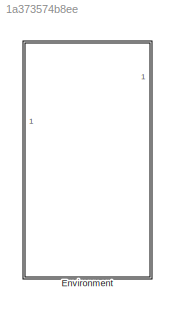
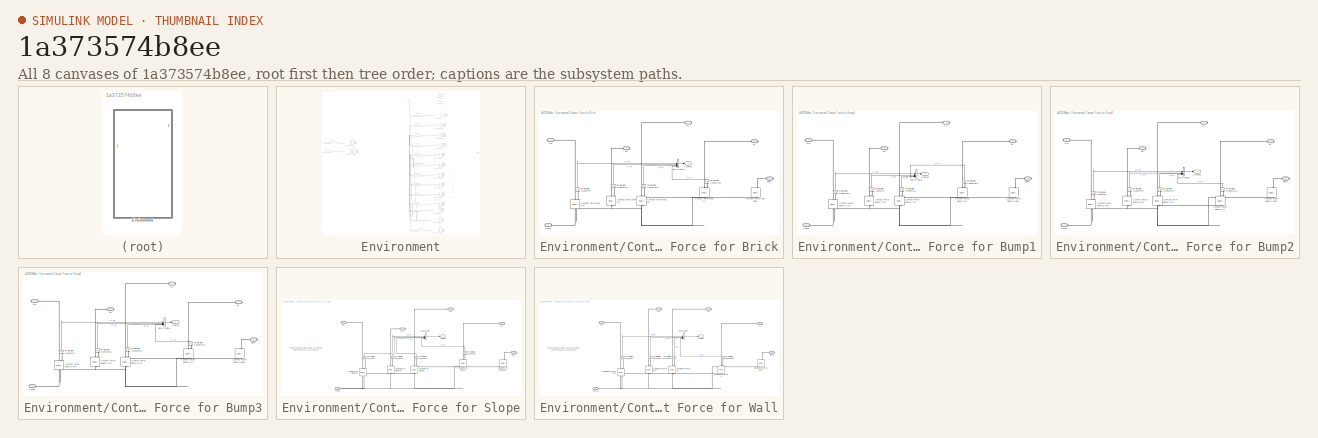
[diagram: thumbnail index - all 8 canvases of the model, root first then tree order]
MODEL slx_1a373574b8ee
KIND library
CONFIG AbsTol = auto
CONFIG EnableMultiTasking = off
CONFIG FixedStep = auto
CONFIG MaxStep = auto
CONFIG MinStep = auto
CONFIG RelTol = 1e-3
CONFIG SampleTimeConstraint = Unconstrained
CONFIG SolverName = VariableStepAuto
CONFIG StartTime = 0.0
CONFIG StopTime = 10.0
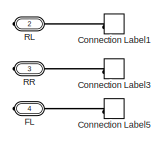
[diagram: Environment - part 1/8, top right region]
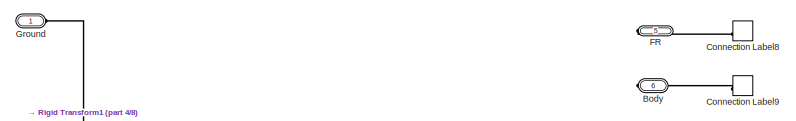
[diagram: Environment - part 2/8, top center region]
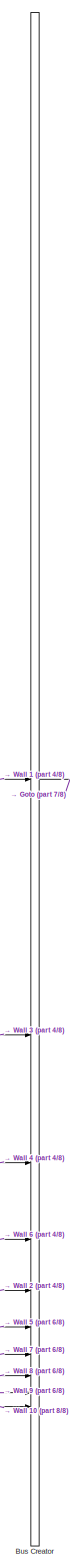
[diagram: Environment - part 3/8, middle right region]
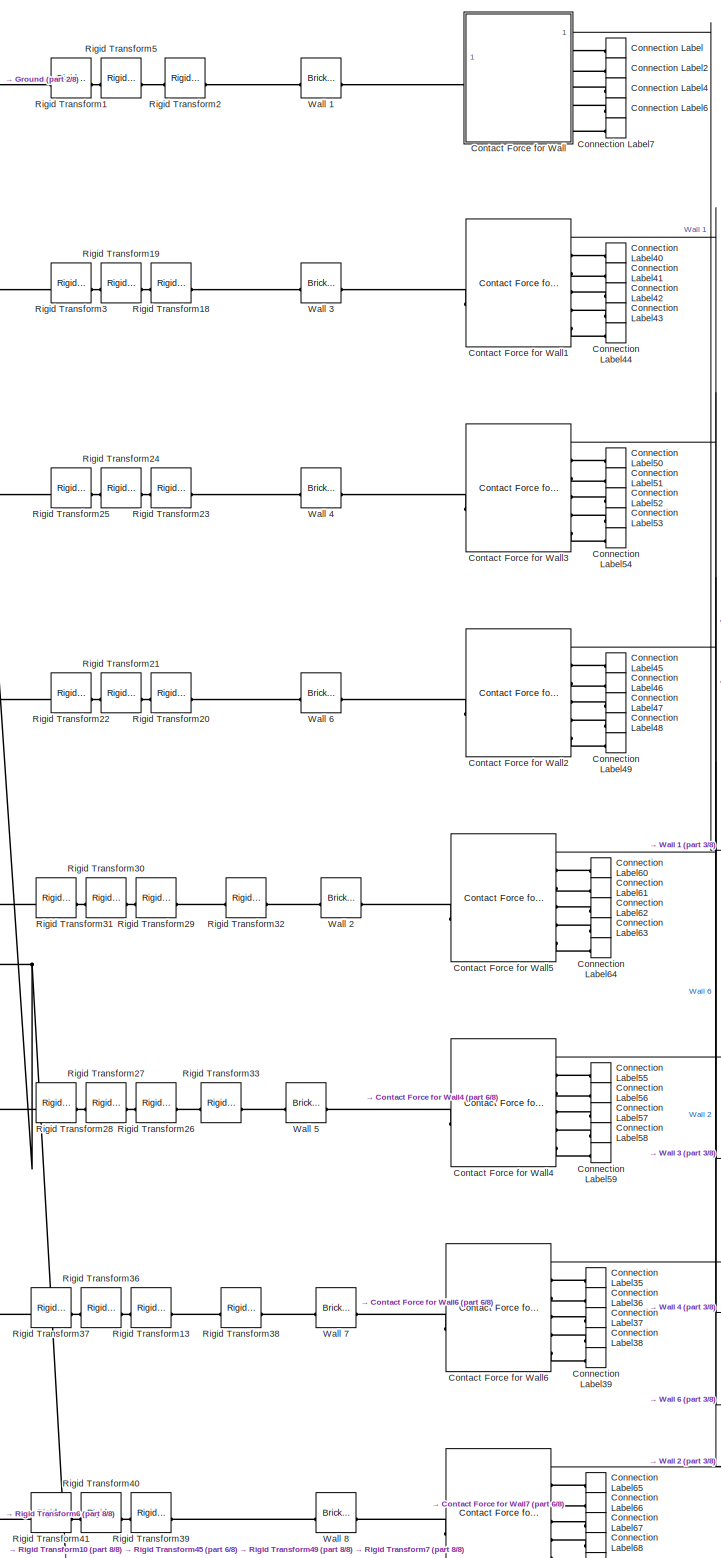
[diagram: Environment - part 4/8, middle right region]
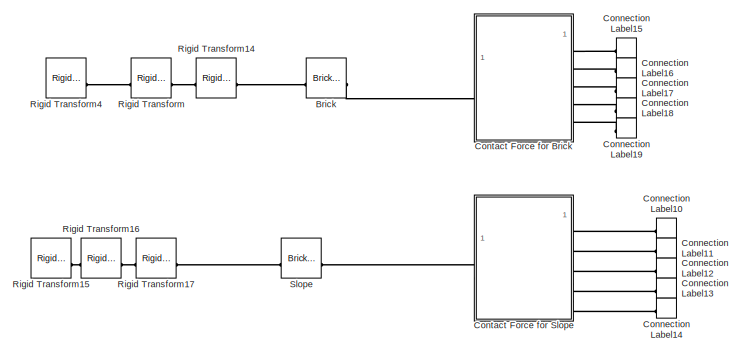
[diagram: Environment - part 5/8, middle left region]
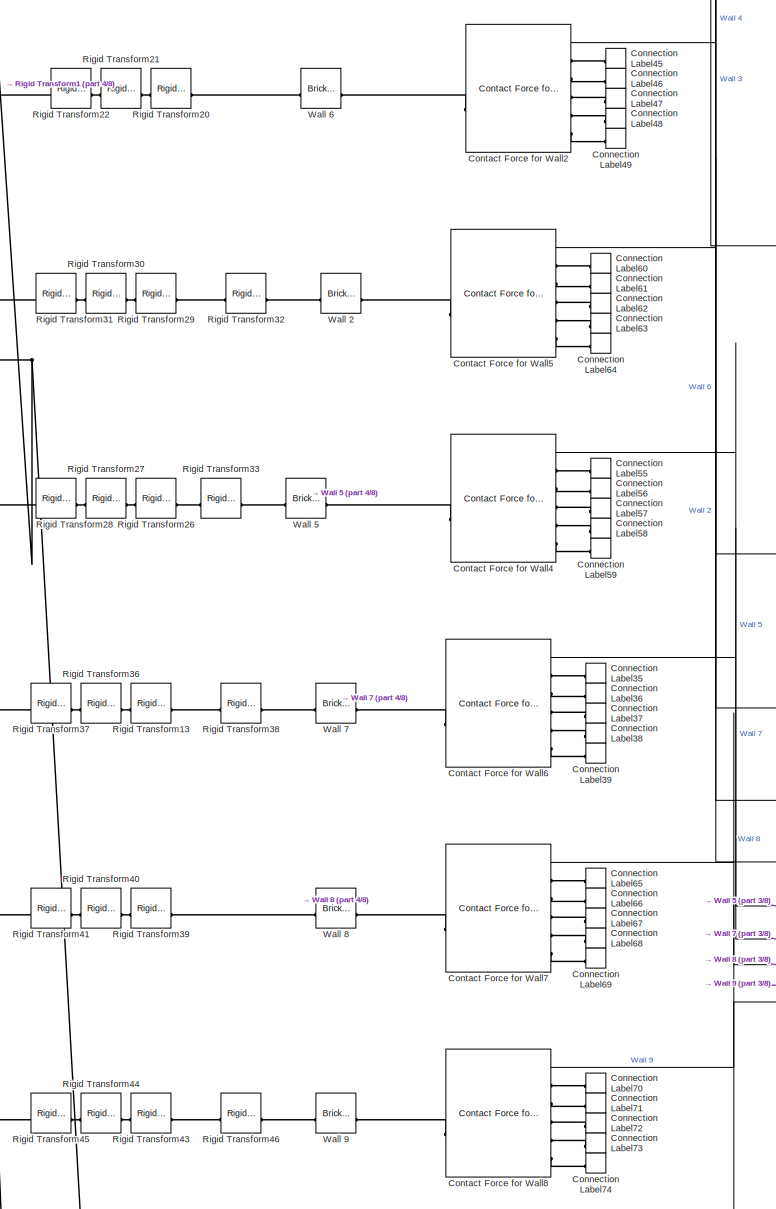
[diagram: Environment - part 6/8, middle right region]
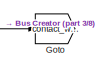
[diagram: Environment - part 7/8, middle right region]
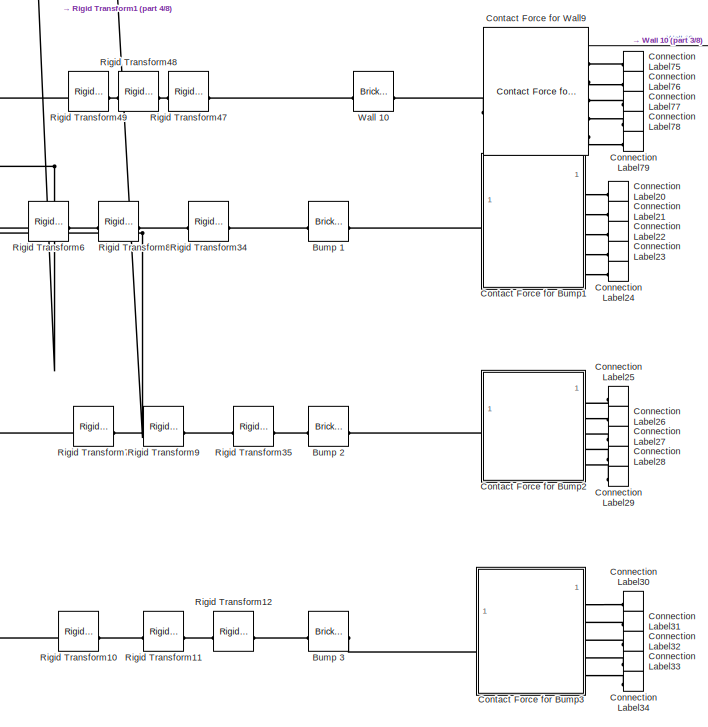
[diagram: Environment - part 8/8, bottom center region]
BLOCK [SubSystem] Environment
BLOCK [Reference] Environment/ Brick  REF=sm_lib/Body Elements/Brick Solid
  Commented = on
  NameLocation = top
  SourceBlock = sm_lib/Body Elements/Brick Solid
  SourceType = Brick Solid
BLOCK [PMIOPort] Environment/Body
  Port = 6
  Side = Right
BLOCK [Reference] Environment/Bump 1  REF=sm_lib/Body Elements/Brick Solid
  Commented = on
  NameLocation = top
  SourceBlock = sm_lib/Body Elements/Brick Solid
  SourceType = Brick Solid
BLOCK [Reference] Environment/Bump 2  REF=sm_lib/Body Elements/Brick Solid
  Commented = on
  NameLocation = top
  SourceBlock = sm_lib/Body Elements/Brick Solid
  SourceType = Brick Solid
BLOCK [Reference] Environment/Bump 3  REF=sm_lib/Body Elements/Brick Solid
  Commented = on
  NameLocation = top
  SourceBlock = sm_lib/Body Elements/Brick Solid
  SourceType = Brick Solid
BLOCK [BusCreator] Environment/Bus Creator
  DisplayOption = bar
  InheritFromInputs = on
  Inputs = 10
BLOCK [ConnectionLabel] Environment/Connection Label
  Label = Conn1
BLOCK [ConnectionLabel] Environment/Connection Label1
  Label = Conn1
BLOCK [ConnectionLabel] Environment/Connection Label10
  Label = Conn1
BLOCK [ConnectionLabel] Environment/Connection Label11
  Label = Conn2
BLOCK [ConnectionLabel] Environment/Connection Label12
  Label = Conn3
BLOCK [ConnectionLabel] Environment/Connection Label13
  Label = Conn4
BLOCK [ConnectionLabel] Environment/Connection Label14
  Label = Conn6
BLOCK [ConnectionLabel] Environment/Connection Label15
  Label = Conn1
BLOCK [ConnectionLabel] Environment/Connection Label16
  Label = Conn2
BLOCK [ConnectionLabel] Environment/Connection Label17
  Label = Conn3
BLOCK [ConnectionLabel] Environment/Connection Label18
  Label = Conn4
BLOCK [ConnectionLabel] Environment/Connection Label19
  Label = Conn6
BLOCK [ConnectionLabel] Environment/Connection Label2
  Label = Conn2
BLOCK [ConnectionLabel] Environment/Connection Label20
  Label = Conn1
BLOCK [ConnectionLabel] Environment/Connection Label21
  Label = Conn2
BLOCK [ConnectionLabel] Environment/Connection Label22
  Label = Conn3
BLOCK [ConnectionLabel] Environment/Connection Label23
  Label = Conn4
BLOCK [ConnectionLabel] Environment/Connection Label24
  Label = Conn6
BLOCK [ConnectionLabel] Environment/Connection Label25
  Label = Conn1
BLOCK [ConnectionLabel] Environment/Connection Label26
  Label = Conn2
BLOCK [ConnectionLabel] Environment/Connection Label27
  Label = Conn3
BLOCK [ConnectionLabel] Environment/Connection Label28
  Label = Conn4
BLOCK [ConnectionLabel] Environment/Connection Label29
  Label = Conn6
BLOCK [ConnectionLabel] Environment/Connection Label3
  Label = Conn2
BLOCK [ConnectionLabel] Environment/Connection Label30
  Label = Conn1
BLOCK [ConnectionLabel] Environment/Connection Label31
  Label = Conn2
BLOCK [ConnectionLabel] Environment/Connection Label32
  Label = Conn3
BLOCK [ConnectionLabel] Environment/Connection Label33
  Label = Conn4
BLOCK [ConnectionLabel] Environment/Connection Label34
  Label = Conn6
BLOCK [ConnectionLabel] Environment/Connection Label35
  Label = Conn1
BLOCK [ConnectionLabel] Environment/Connection Label36
  Label = Conn2
BLOCK [ConnectionLabel] Environment/Connection Label37
  Label = Conn3
BLOCK [ConnectionLabel] Environment/Connection Label38
  Label = Conn4
BLOCK [ConnectionLabel] Environment/Connection Label39
  Label = Conn6
BLOCK [ConnectionLabel] Environment/Connection Label4
  Label = Conn3
BLOCK [ConnectionLabel] Environment/Connection Label40
  Label = Conn1
BLOCK [ConnectionLabel] Environment/Connection Label41
  Label = Conn2
BLOCK [ConnectionLabel] Environment/Connection Label42
  Label = Conn3
BLOCK [ConnectionLabel] Environment/Connection Label43
  Label = Conn4
BLOCK [ConnectionLabel] Environment/Connection Label44
  Label = Conn6
BLOCK [ConnectionLabel] Environment/Connection Label45
  Label = Conn1
BLOCK [ConnectionLabel] Environment/Connection Label46
  Label = Conn2
BLOCK [ConnectionLabel] Environment/Connection Label47
  Label = Conn3
BLOCK [ConnectionLabel] Environment/Connection Label48
  Label = Conn4
BLOCK [ConnectionLabel] Environment/Connection Label49
  Label = Conn6
BLOCK [ConnectionLabel] Environment/Connection Label5
  Label = Conn3
BLOCK [ConnectionLabel] Environment/Connection Label50
  Label = Conn1
BLOCK [ConnectionLabel] Environment/Connection Label51
  Label = Conn2
BLOCK [ConnectionLabel] Environment/Connection Label52
  Label = Conn3
BLOCK [ConnectionLabel] Environment/Connection Label53
  Label = Conn4
BLOCK [ConnectionLabel] Environment/Connection Label54
  Label = Conn6
BLOCK [ConnectionLabel] Environment/Connection Label55
  Label = Conn1
BLOCK [ConnectionLabel] Environment/Connection Label56
  Label = Conn2
BLOCK [ConnectionLabel] Environment/Connection Label57
  Label = Conn3
BLOCK [ConnectionLabel] Environment/Connection Label58
  Label = Conn4
BLOCK [ConnectionLabel] Environment/Connection Label59
  Label = Conn6
BLOCK [ConnectionLabel] Environment/Connection Label6
  Label = Conn4
BLOCK [ConnectionLabel] Environment/Connection Label60
  Label = Conn1
BLOCK [ConnectionLabel] Environment/Connection Label61
  Label = Conn2
BLOCK [ConnectionLabel] Environment/Connection Label62
  Label = Conn3
BLOCK [ConnectionLabel] Environment/Connection Label63
  Label = Conn4
BLOCK [ConnectionLabel] Environment/Connection Label64
  Label = Conn6
BLOCK [ConnectionLabel] Environment/Connection Label65
  Label = Conn1
BLOCK [ConnectionLabel] Environment/Connection Label66
  Label = Conn2
BLOCK [ConnectionLabel] Environment/Connection Label67
  Label = Conn3
BLOCK [ConnectionLabel] Environment/Connection Label68
  Label = Conn4
BLOCK [ConnectionLabel] Environment/Connection Label69
  Label = Conn6
BLOCK [ConnectionLabel] Environment/Connection Label7
  Label = Conn6
BLOCK [ConnectionLabel] Environment/Connection Label70
  Label = Conn1
BLOCK [ConnectionLabel] Environment/Connection Label71
  Label = Conn2
BLOCK [ConnectionLabel] Environment/Connection Label72
  Label = Conn3
BLOCK [ConnectionLabel] Environment/Connection Label73
  Label = Conn4
BLOCK [ConnectionLabel] Environment/Connection Label74
  Label = Conn6
BLOCK [ConnectionLabel] Environment/Connection Label75
  Label = Conn1
BLOCK [ConnectionLabel] Environment/Connection Label76
  Label = Conn2
BLOCK [ConnectionLabel] Environment/Connection Label77
  Label = Conn3
BLOCK [ConnectionLabel] Environment/Connection Label78
  Label = Conn4
BLOCK [ConnectionLabel] Environment/Connection Label79
  Label = Conn6
BLOCK [ConnectionLabel] Environment/Connection Label8
  Label = Conn4
BLOCK [ConnectionLabel] Environment/Connection Label9
  Label = Conn6
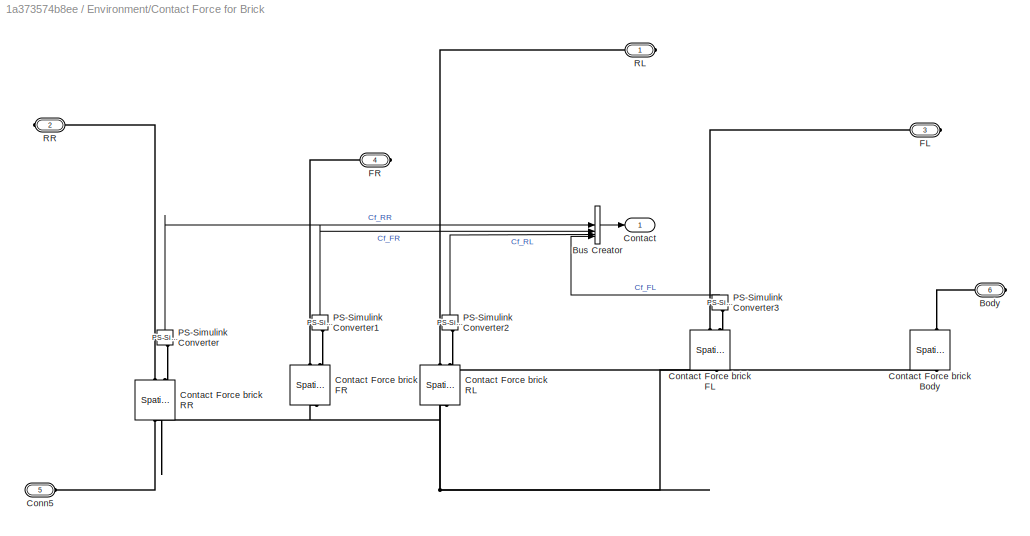
BLOCK [SubSystem] Environment/Contact Force for Brick
  Commented = on
BLOCK [PMIOPort] Environment/Contact Force for Brick/Body
  Port = 6
  Side = Right
BLOCK [BusCreator] Environment/Contact Force for Brick/Bus Creator
  DisplayOption = bar
  InheritFromInputs = on
  Inputs = 4
BLOCK [PMIOPort] Environment/Contact Force for Brick/Conn5
  Port = 5
  Side = Left
BLOCK [Outport] Environment/Contact Force for Brick/Contact
BLOCK [Reference] Environment/Contact Force for Brick/Contact Force brick Body  REF=sm_lib/Forces and
Torques/Spatial
Contact Force
  NameLocation = left
  SourceBlock = sm_lib/Forces and\nTorques/Spatial\nContact Force
  SourceType = Spatial\nContact Force
BLOCK [Reference] Environment/Contact Force for Brick/Contact Force brick FL  REF=sm_lib/Forces and
Torques/Spatial
Contact Force
  NameLocation = left
  SourceBlock = sm_lib/Forces and\nTorques/Spatial\nContact Force
  SourceType = Spatial\nContact Force
BLOCK [Reference] Environment/Contact Force for Brick/Contact Force brick FR  REF=sm_lib/Forces and
Torques/Spatial
Contact Force
  NameLocation = left
  SourceBlock = sm_lib/Forces and\nTorques/Spatial\nContact Force
  SourceType = Spatial\nContact Force
BLOCK [Reference] Environment/Contact Force for Brick/Contact Force brick RL  REF=sm_lib/Forces and
Torques/Spatial
Contact Force
  NameLocation = left
  SourceBlock = sm_lib/Forces and\nTorques/Spatial\nContact Force
  SourceType = Spatial\nContact Force
BLOCK [Reference] Environment/Contact Force for Brick/Contact Force brick RR  REF=sm_lib/Forces and
Torques/Spatial
Contact Force
  NameLocation = left
  SourceBlock = sm_lib/Forces and\nTorques/Spatial\nContact Force
  SourceType = Spatial\nContact Force
BLOCK [PMIOPort] Environment/Contact Force for Brick/FL
  Port = 3
  Side = Right
BLOCK [PMIOPort] Environment/Contact Force for Brick/FR
  Port = 4
  Side = Right
BLOCK [Reference] Environment/Contact Force for Brick/PS-Simulink Converter  REF=nesl_utility/PS-Simulink
Converter
  NameLocation = right
  SourceBlock = nesl_utility/PS-Simulink\nConverter
  SourceType = PS-Simulink\nConverter
BLOCK [Reference] Environment/Contact Force for Brick/PS-Simulink Converter1  REF=nesl_utility/PS-Simulink
Converter
  NameLocation = right
  SourceBlock = nesl_utility/PS-Simulink\nConverter
  SourceType = PS-Simulink\nConverter
BLOCK [Reference] Environment/Contact Force for Brick/PS-Simulink Converter2  REF=nesl_utility/PS-Simulink
Converter
  NameLocation = right
  SourceBlock = nesl_utility/PS-Simulink\nConverter
  SourceType = PS-Simulink\nConverter
BLOCK [Reference] Environment/Contact Force for Brick/PS-Simulink Converter3  REF=nesl_utility/PS-Simulink
Converter
  NameLocation = right
  SourceBlock = nesl_utility/PS-Simulink\nConverter
  SourceType = PS-Simulink\nConverter
BLOCK [PMIOPort] Environment/Contact Force for Brick/RL
  Side = Right
BLOCK [PMIOPort] Environment/Contact Force for Brick/RR
  Port = 2
  Side = Right
BLOCK [SubSystem] Environment/Contact Force for Bump1
  Commented = on
BLOCK [PMIOPort] Environment/Contact Force for Bump1/Body
  Port = 6
  Side = Right
BLOCK [BusCreator] Environment/Contact Force for Bump1/Bus Creator
  DisplayOption = bar
  InheritFromInputs = on
  Inputs = 4
BLOCK [PMIOPort] Environment/Contact Force for Bump1/Conn5
  Port = 5
  Side = Left
BLOCK [Outport] Environment/Contact Force for Bump1/Contact
BLOCK [Reference] Environment/Contact Force for Bump1/Contact Force Bump 1 Body  REF=sm_lib/Forces and
Torques/Spatial
Contact Force
  NameLocation = left
  SourceBlock = sm_lib/Forces and\nTorques/Spatial\nContact Force
  SourceType = Spatial\nContact Force
BLOCK [Reference] Environment/Contact Force for Bump1/Contact Force Bump 1 FL  REF=sm_lib/Forces and
Torques/Spatial
Contact Force
  NameLocation = left
  SourceBlock = sm_lib/Forces and\nTorques/Spatial\nContact Force
  SourceType = Spatial\nContact Force
BLOCK [Reference] Environment/Contact Force for Bump1/Contact Force Bump 1 FR  REF=sm_lib/Forces and
Torques/Spatial
Contact Force
  NameLocation = left
  SourceBlock = sm_lib/Forces and\nTorques/Spatial\nContact Force
  SourceType = Spatial\nContact Force
BLOCK [Reference] Environment/Contact Force for Bump1/Contact Force Bump 1 RL  REF=sm_lib/Forces and
Torques/Spatial
Contact Force
  NameLocation = left
  SourceBlock = sm_lib/Forces and\nTorques/Spatial\nContact Force
  SourceType = Spatial\nContact Force
BLOCK [Reference] Environment/Contact Force for Bump1/Contact Force Bump 1 RR  REF=sm_lib/Forces and
Torques/Spatial
Contact Force
  NameLocation = left
  SourceBlock = sm_lib/Forces and\nTorques/Spatial\nContact Force
  SourceType = Spatial\nContact Force
BLOCK [PMIOPort] Environment/Contact Force for Bump1/FL
  Port = 3
  Side = Right
BLOCK [PMIOPort] Environment/Contact Force for Bump1/FR
  Port = 4
  Side = Right
BLOCK [Reference] Environment/Contact Force for Bump1/PS-Simulink Converter  REF=nesl_utility/PS-Simulink
Converter
  NameLocation = right
  SourceBlock = nesl_utility/PS-Simulink\nConverter
  SourceType = PS-Simulink\nConverter
BLOCK [Reference] Environment/Contact Force for Bump1/PS-Simulink Converter1  REF=nesl_utility/PS-Simulink
Converter
  NameLocation = right
  SourceBlock = nesl_utility/PS-Simulink\nConverter
  SourceType = PS-Simulink\nConverter
BLOCK [Reference] Environment/Contact Force for Bump1/PS-Simulink Converter2  REF=nesl_utility/PS-Simulink
Converter
  NameLocation = right
  SourceBlock = nesl_utility/PS-Simulink\nConverter
  SourceType = PS-Simulink\nConverter
BLOCK [Reference] Environment/Contact Force for Bump1/PS-Simulink Converter3  REF=nesl_utility/PS-Simulink
Converter
  NameLocation = right
  SourceBlock = nesl_utility/PS-Simulink\nConverter
  SourceType = PS-Simulink\nConverter
BLOCK [PMIOPort] Environment/Contact Force for Bump1/RL
  Side = Right
BLOCK [PMIOPort] Environment/Contact Force for Bump1/RR
  Port = 2
  Side = Right
BLOCK [SubSystem] Environment/Contact Force for Bump2
  Commented = on
BLOCK [PMIOPort] Environment/Contact Force for Bump2/Body
  Port = 6
  Side = Right
BLOCK [BusCreator] Environment/Contact Force for Bump2/Bus Creator
  DisplayOption = bar
  InheritFromInputs = on
  Inputs = 4
BLOCK [PMIOPort] Environment/Contact Force for Bump2/Conn5
  Side = Left
BLOCK [Outport] Environment/Contact Force for Bump2/Contact
BLOCK [Reference] Environment/Contact Force for Bump2/Contact Force Bump 2 Body  REF=sm_lib/Forces and
Torques/Spatial
Contact Force
  NameLocation = left
  SourceBlock = sm_lib/Forces and\nTorques/Spatial\nContact Force
  SourceType = Spatial\nContact Force
BLOCK [Reference] Environment/Contact Force for Bump2/Contact Force Bump 2 FL  REF=sm_lib/Forces and
Torques/Spatial
Contact Force
  NameLocation = left
  SourceBlock = sm_lib/Forces and\nTorques/Spatial\nContact Force
  SourceType = Spatial\nContact Force
BLOCK [Reference] Environment/Contact Force for Bump2/Contact Force Bump 2 FR  REF=sm_lib/Forces and
Torques/Spatial
Contact Force
  NameLocation = left
  SourceBlock = sm_lib/Forces and\nTorques/Spatial\nContact Force
  SourceType = Spatial\nContact Force
BLOCK [Reference] Environment/Contact Force for Bump2/Contact Force Bump 2 RL  REF=sm_lib/Forces and
Torques/Spatial
Contact Force
  NameLocation = left
  SourceBlock = sm_lib/Forces and\nTorques/Spatial\nContact Force
  SourceType = Spatial\nContact Force
BLOCK [Reference] Environment/Contact Force for Bump2/Contact Force Bump 2 RR  REF=sm_lib/Forces and
Torques/Spatial
Contact Force
  NameLocation = left
  SourceBlock = sm_lib/Forces and\nTorques/Spatial\nContact Force
  SourceType = Spatial\nContact Force
BLOCK [PMIOPort] Environment/Contact Force for Bump2/FL
  Port = 4
  Side = Right
BLOCK [PMIOPort] Environment/Contact Force for Bump2/FR
  Port = 5
  Side = Right
BLOCK [Reference] Environment/Contact Force for Bump2/PS-Simulink Converter  REF=nesl_utility/PS-Simulink
Converter
  NameLocation = right
  SourceBlock = nesl_utility/PS-Simulink\nConverter
  SourceType = PS-Simulink\nConverter
BLOCK [Reference] Environment/Contact Force for Bump2/PS-Simulink Converter1  REF=nesl_utility/PS-Simulink
Converter
  NameLocation = right
  SourceBlock = nesl_utility/PS-Simulink\nConverter
  SourceType = PS-Simulink\nConverter
BLOCK [Reference] Environment/Contact Force for Bump2/PS-Simulink Converter2  REF=nesl_utility/PS-Simulink
Converter
  NameLocation = right
  SourceBlock = nesl_utility/PS-Simulink\nConverter
  SourceType = PS-Simulink\nConverter
BLOCK [Reference] Environment/Contact Force for Bump2/PS-Simulink Converter3  REF=nesl_utility/PS-Simulink
Converter
  NameLocation = right
  SourceBlock = nesl_utility/PS-Simulink\nConverter
  SourceType = PS-Simulink\nConverter
BLOCK [PMIOPort] Environment/Contact Force for Bump2/RL
  Port = 2
  Side = Right
BLOCK [PMIOPort] Environment/Contact Force for Bump2/RR
  Port = 3
  Side = Right
BLOCK [SubSystem] Environment/Contact Force for Bump3
  Commented = on
BLOCK [PMIOPort] Environment/Contact Force for Bump3/Body
  Port = 6
  Side = Right
BLOCK [BusCreator] Environment/Contact Force for Bump3/Bus Creator
  DisplayOption = bar
  InheritFromInputs = on
  Inputs = 4
BLOCK [PMIOPort] Environment/Contact Force for Bump3/Conn5
  Port = 5
  Side = Left
BLOCK [Outport] Environment/Contact Force for Bump3/Contact
BLOCK [Reference] Environment/Contact Force for Bump3/Contact Force Bump 3 Body  REF=sm_lib/Forces and
Torques/Spatial
Contact Force
  NameLocation = left
  SourceBlock = sm_lib/Forces and\nTorques/Spatial\nContact Force
  SourceType = Spatial\nContact Force
BLOCK [Reference] Environment/Contact Force for Bump3/Contact Force Bump 3 FL  REF=sm_lib/Forces and
Torques/Spatial
Contact Force
  NameLocation = left
  SourceBlock = sm_lib/Forces and\nTorques/Spatial\nContact Force
  SourceType = Spatial\nContact Force
BLOCK [Reference] Environment/Contact Force for Bump3/Contact Force Bump 3 FR  REF=sm_lib/Forces and
Torques/Spatial
Contact Force
  NameLocation = left
  SourceBlock = sm_lib/Forces and\nTorques/Spatial\nContact Force
  SourceType = Spatial\nContact Force
BLOCK [Reference] Environment/Contact Force for Bump3/Contact Force Bump 3 RL  REF=sm_lib/Forces and
Torques/Spatial
Contact Force
  NameLocation = left
  SourceBlock = sm_lib/Forces and\nTorques/Spatial\nContact Force
  SourceType = Spatial\nContact Force
BLOCK [Reference] Environment/Contact Force for Bump3/Contact Force Bump 3 RR  REF=sm_lib/Forces and
Torques/Spatial
Contact Force
  NameLocation = left
  SourceBlock = sm_lib/Forces and\nTorques/Spatial\nContact Force
  SourceType = Spatial\nContact Force
BLOCK [PMIOPort] Environment/Contact Force for Bump3/FL
  Port = 3
  Side = Right
BLOCK [PMIOPort] Environment/Contact Force for Bump3/FR
  Port = 4
  Side = Right
BLOCK [Reference] Environment/Contact Force for Bump3/PS-Simulink Converter  REF=nesl_utility/PS-Simulink
Converter
  NameLocation = right
  SourceBlock = nesl_utility/PS-Simulink\nConverter
  SourceType = PS-Simulink\nConverter
BLOCK [Reference] Environment/Contact Force for Bump3/PS-Simulink Converter1  REF=nesl_utility/PS-Simulink
Converter
  NameLocation = right
  SourceBlock = nesl_utility/PS-Simulink\nConverter
  SourceType = PS-Simulink\nConverter
BLOCK [Reference] Environment/Contact Force for Bump3/PS-Simulink Converter2  REF=nesl_utility/PS-Simulink
Converter
  NameLocation = right
  SourceBlock = nesl_utility/PS-Simulink\nConverter
  SourceType = PS-Simulink\nConverter
BLOCK [Reference] Environment/Contact Force for Bump3/PS-Simulink Converter3  REF=nesl_utility/PS-Simulink
Converter
  NameLocation = right
  SourceBlock = nesl_utility/PS-Simulink\nConverter
  SourceType = PS-Simulink\nConverter
BLOCK [PMIOPort] Environment/Contact Force for Bump3/RL
  Side = Right
BLOCK [PMIOPort] Environment/Contact Force for Bump3/RR
  Port = 2
  Side = Right
BLOCK [SubSystem] Environment/Contact Force for Slope
  Commented = on
BLOCK [PMIOPort] Environment/Contact Force for Slope/Body
  Port = 6
  Side = Right
BLOCK [BusCreator] Environment/Contact Force for Slope/Bus Creator
  DisplayOption = bar
  InheritFromInputs = on
  Inputs = 4
BLOCK [PMIOPort] Environment/Contact Force for Slope/Conn5
  Port = 5
  Side = Left
BLOCK [Outport] Environment/Contact Force for Slope/Contact
BLOCK [Reference] Environment/Contact Force for Slope/Contact Force Slope Body  REF=sm_lib/Forces and
Torques/Spatial
Contact Force
  NameLocation = left
  SourceBlock = sm_lib/Forces and\nTorques/Spatial\nContact Force
  SourceType = Spatial\nContact Force
BLOCK [Reference] Environment/Contact Force for Slope/Contact Force Slope FL  REF=sm_lib/Forces and
Torques/Spatial
Contact Force
  NameLocation = left
  SourceBlock = sm_lib/Forces and\nTorques/Spatial\nContact Force
  SourceType = Spatial\nContact Force
BLOCK [Reference] Environment/Contact Force for Slope/Contact Force Slope FR  REF=sm_lib/Forces and
Torques/Spatial
Contact Force
  NameLocation = left
  SourceBlock = sm_lib/Forces and\nTorques/Spatial\nContact Force
  SourceType = Spatial\nContact Force
BLOCK [Reference] Environment/Contact Force for Slope/Contact Force Slope RL  REF=sm_lib/Forces and
Torques/Spatial
Contact Force
  NameLocation = left
  SourceBlock = sm_lib/Forces and\nTorques/Spatial\nContact Force
  SourceType = Spatial\nContact Force
BLOCK [Reference] Environment/Contact Force for Slope/Contact Force Slope RR  REF=sm_lib/Forces and
Torques/Spatial
Contact Force
  NameLocation = left
  SourceBlock = sm_lib/Forces and\nTorques/Spatial\nContact Force
  SourceType = Spatial\nContact Force
BLOCK [PMIOPort] Environment/Contact Force for Slope/FL
  Port = 3
  Side = Right
BLOCK [PMIOPort] Environment/Contact Force for Slope/FR
  Port = 4
  Side = Right
BLOCK [Reference] Environment/Contact Force for Slope/PS-Simulink Converter  REF=nesl_utility/PS-Simulink
Converter
  NameLocation = right
  SourceBlock = nesl_utility/PS-Simulink\nConverter
  SourceType = PS-Simulink\nConverter
BLOCK [Reference] Environment/Contact Force for Slope/PS-Simulink Converter1  REF=nesl_utility/PS-Simulink
Converter
  NameLocation = right
  SourceBlock = nesl_utility/PS-Simulink\nConverter
  SourceType = PS-Simulink\nConverter
BLOCK [Reference] Environment/Contact Force for Slope/PS-Simulink Converter2  REF=nesl_utility/PS-Simulink
Converter
  NameLocation = right
  SourceBlock = nesl_utility/PS-Simulink\nConverter
  SourceType = PS-Simulink\nConverter
BLOCK [Reference] Environment/Contact Force for Slope/PS-Simulink Converter3  REF=nesl_utility/PS-Simulink
Converter
  NameLocation = right
  SourceBlock = nesl_utility/PS-Simulink\nConverter
  SourceType = PS-Simulink\nConverter
BLOCK [PMIOPort] Environment/Contact Force for Slope/RL
  Side = Right
BLOCK [PMIOPort] Environment/Contact Force for Slope/RR
  Port = 2
  Side = Right
BLOCK [SubSystem] Environment/Contact Force for Wall
BLOCK [PMIOPort] Environment/Contact Force for Wall/Body
  Port = 6
  Side = Right
BLOCK [BusCreator] Environment/Contact Force for Wall/Bus Creator
  DisplayOption = bar
  InheritFromInputs = on
  Inputs = 4
BLOCK [PMIOPort] Environment/Contact Force for Wall/Conn5
  Port = 5
  Side = Left
BLOCK [Outport] Environment/Contact Force for Wall/Contact
BLOCK [Reference] Environment/Contact Force for Wall/Contact Force Wall Body  REF=sm_lib/Forces and
Torques/Spatial
Contact Force
  NameLocation = left
  SourceBlock = sm_lib/Forces and\nTorques/Spatial\nContact Force
  SourceType = Spatial\nContact Force
BLOCK [Reference] Environment/Contact Force for Wall/Contact Force Wall FL  REF=sm_lib/Forces and
Torques/Spatial
Contact Force
  NameLocation = left
  SourceBlock = sm_lib/Forces and\nTorques/Spatial\nContact Force
  SourceType = Spatial\nContact Force
BLOCK [Reference] Environment/Contact Force for Wall/Contact Force Wall FR  REF=sm_lib/Forces and
Torques/Spatial
Contact Force
  NameLocation = left
  SourceBlock = sm_lib/Forces and\nTorques/Spatial\nContact Force
  SourceType = Spatial\nContact Force
BLOCK [Reference] Environment/Contact Force for Wall/Contact Force Wall RL  REF=sm_lib/Forces and
Torques/Spatial
Contact Force
  NameLocation = left
  SourceBlock = sm_lib/Forces and\nTorques/Spatial\nContact Force
  SourceType = Spatial\nContact Force
BLOCK [Reference] Environment/Contact Force for Wall/Contact Force Wall RR  REF=sm_lib/Forces and
Torques/Spatial
Contact Force
  NameLocation = left
  SourceBlock = sm_lib/Forces and\nTorques/Spatial\nContact Force
  SourceType = Spatial\nContact Force
BLOCK [PMIOPort] Environment/Contact Force for Wall/FL
  Port = 3
  Side = Right
BLOCK [PMIOPort] Environment/Contact Force for Wall/FR
  Port = 4
  Side = Right
BLOCK [Reference] Environment/Contact Force for Wall/PS-Simulink Converter  REF=nesl_utility/PS-Simulink
Converter
  NameLocation = right
  SourceBlock = nesl_utility/PS-Simulink\nConverter
  SourceType = PS-Simulink\nConverter
BLOCK [Reference] Environment/Contact Force for Wall/PS-Simulink Converter1  REF=nesl_utility/PS-Simulink
Converter
  NameLocation = right
  SourceBlock = nesl_utility/PS-Simulink\nConverter
  SourceType = PS-Simulink\nConverter
BLOCK [Reference] Environment/Contact Force for Wall/PS-Simulink Converter2  REF=nesl_utility/PS-Simulink
Converter
  NameLocation = right
  SourceBlock = nesl_utility/PS-Simulink\nConverter
  SourceType = PS-Simulink\nConverter
BLOCK [Reference] Environment/Contact Force for Wall/PS-Simulink Converter3  REF=nesl_utility/PS-Simulink
Converter
  NameLocation = right
  SourceBlock = nesl_utility/PS-Simulink\nConverter
  SourceType = PS-Simulink\nConverter
BLOCK [PMIOPort] Environment/Contact Force for Wall/RL
  Side = Right
BLOCK [PMIOPort] Environment/Contact Force for Wall/RR
  Port = 2
  Side = Right
BLOCK [Reference] Environment/Contact Force for Wall1  REF=$bdroot/Environment/Contact Force for Wall
  SourceBlock = $bdroot/Environment/Contact Force for Wall
  SourceType = SubSystem
BLOCK [Reference] Environment/Contact Force for Wall2  REF=$bdroot/Environment/Contact Force for Wall
  SourceBlock = $bdroot/Environment/Contact Force for Wall
  SourceType = SubSystem
BLOCK [Reference] Environment/Contact Force for Wall3  REF=$bdroot/Environment/Contact Force for Wall
  SourceBlock = $bdroot/Environment/Contact Force for Wall
  SourceType = SubSystem
BLOCK [Reference] Environment/Contact Force for Wall4  REF=$bdroot/Environment/Contact Force for Wall
  SourceBlock = $bdroot/Environment/Contact Force for Wall
  SourceType = SubSystem
BLOCK [Reference] Environment/Contact Force for Wall5  REF=$bdroot/Environment/Contact Force for Wall
  SourceBlock = $bdroot/Environment/Contact Force for Wall
  SourceType = SubSystem
BLOCK [Reference] Environment/Contact Force for Wall6  REF=$bdroot/Environment/Contact Force for Wall
  SourceBlock = $bdroot/Environment/Contact Force for Wall
  SourceType = SubSystem
BLOCK [Reference] Environment/Contact Force for Wall7  REF=$bdroot/Environment/Contact Force for Wall
  SourceBlock = $bdroot/Environment/Contact Force for Wall
  SourceType = SubSystem
BLOCK [Reference] Environment/Contact Force for Wall8  REF=$bdroot/Environment/Contact Force for Wall
  SourceBlock = $bdroot/Environment/Contact Force for Wall
  SourceType = SubSystem
BLOCK [Reference] Environment/Contact Force for Wall9  REF=$bdroot/Environment/Contact Force for Wall
  SourceBlock = $bdroot/Environment/Contact Force for Wall
  SourceType = SubSystem
BLOCK [PMIOPort] Environment/FL
  Port = 4
  Side = Right
BLOCK [PMIOPort] Environment/FR
  NameLocation = top
  Port = 5
  Side = Right
BLOCK [Goto] Environment/Goto
  GotoTag = contact_with_x
  TagVisibility = global
BLOCK [PMIOPort] Environment/Ground
  Side = Left
BLOCK [PMIOPort] Environment/RL
  Port = 2
  Side = Right
BLOCK [PMIOPort] Environment/RR
  NameLocation = top
  Port = 3
  Side = Right
BLOCK [Reference] Environment/Rigid Transform  REF=sm_lib/Frames and
Transforms/Rigid
Transform
  Commented = on
  SourceBlock = sm_lib/Frames and\nTransforms/Rigid\nTransform
  SourceType = Rigid\nTransform
BLOCK [Reference] Environment/Rigid Transform1  REF=sm_lib/Frames and
Transforms/Rigid
Transform
  SourceBlock = sm_lib/Frames and\nTransforms/Rigid\nTransform
  SourceType = Rigid\nTransform
BLOCK [Reference] Environment/Rigid Transform10  REF=sm_lib/Frames and
Transforms/Rigid
Transform
  Commented = on
  SourceBlock = sm_lib/Frames and\nTransforms/Rigid\nTransform
  SourceType = Rigid\nTransform
BLOCK [Reference] Environment/Rigid Transform11  REF=sm_lib/Frames and
Transforms/Rigid
Transform
  Commented = on
  SourceBlock = sm_lib/Frames and\nTransforms/Rigid\nTransform
  SourceType = Rigid\nTransform
BLOCK [Reference] Environment/Rigid Transform12  REF=sm_lib/Frames and
Transforms/Rigid
Transform
  Commented = on
  SourceBlock = sm_lib/Frames and\nTransforms/Rigid\nTransform
  SourceType = Rigid\nTransform
BLOCK [Reference] Environment/Rigid Transform13  REF=sm_lib/Frames and
Transforms/Rigid
Transform
  SourceBlock = sm_lib/Frames and\nTransforms/Rigid\nTransform
  SourceType = Rigid\nTransform
BLOCK [Reference] Environment/Rigid Transform14  REF=sm_lib/Frames and
Transforms/Rigid
Transform
  Commented = on
  SourceBlock = sm_lib/Frames and\nTransforms/Rigid\nTransform
  SourceType = Rigid\nTransform
BLOCK [Reference] Environment/Rigid Transform15  REF=sm_lib/Frames and
Transforms/Rigid
Transform
  Commented = on
  SourceBlock = sm_lib/Frames and\nTransforms/Rigid\nTransform
  SourceType = Rigid\nTransform
BLOCK [Reference] Environment/Rigid Transform16  REF=sm_lib/Frames and
Transforms/Rigid
Transform
  Commented = on
  SourceBlock = sm_lib/Frames and\nTransforms/Rigid\nTransform
  SourceType = Rigid\nTransform
BLOCK [Reference] Environment/Rigid Transform17  REF=sm_lib/Frames and
Transforms/Rigid
Transform
  Commented = on
  SourceBlock = sm_lib/Frames and\nTransforms/Rigid\nTransform
  SourceType = Rigid\nTransform
BLOCK [Reference] Environment/Rigid Transform18  REF=sm_lib/Frames and
Transforms/Rigid
Transform
  SourceBlock = sm_lib/Frames and\nTransforms/Rigid\nTransform
  SourceType = Rigid\nTransform
BLOCK [Reference] Environment/Rigid Transform19  REF=sm_lib/Frames and
Transforms/Rigid
Transform
  SourceBlock = sm_lib/Frames and\nTransforms/Rigid\nTransform
  SourceType = Rigid\nTransform
BLOCK [Reference] Environment/Rigid Transform2  REF=sm_lib/Frames and
Transforms/Rigid
Transform
  SourceBlock = sm_lib/Frames and\nTransforms/Rigid\nTransform
  SourceType = Rigid\nTransform
BLOCK [Reference] Environment/Rigid Transform20  REF=sm_lib/Frames and
Transforms/Rigid
Transform
  SourceBlock = sm_lib/Frames and\nTransforms/Rigid\nTransform
  SourceType = Rigid\nTransform
BLOCK [Reference] Environment/Rigid Transform21  REF=sm_lib/Frames and
Transforms/Rigid
Transform
  SourceBlock = sm_lib/Frames and\nTransforms/Rigid\nTransform
  SourceType = Rigid\nTransform
BLOCK [Reference] Environment/Rigid Transform22  REF=sm_lib/Frames and
Transforms/Rigid
Transform
  SourceBlock = sm_lib/Frames and\nTransforms/Rigid\nTransform
  SourceType = Rigid\nTransform
BLOCK [Reference] Environment/Rigid Transform23  REF=sm_lib/Frames and
Transforms/Rigid
Transform
  SourceBlock = sm_lib/Frames and\nTransforms/Rigid\nTransform
  SourceType = Rigid\nTransform
BLOCK [Reference] Environment/Rigid Transform24  REF=sm_lib/Frames and
Transforms/Rigid
Transform
  SourceBlock = sm_lib/Frames and\nTransforms/Rigid\nTransform
  SourceType = Rigid\nTransform
BLOCK [Reference] Environment/Rigid Transform25  REF=sm_lib/Frames and
Transforms/Rigid
Transform
  SourceBlock = sm_lib/Frames and\nTransforms/Rigid\nTransform
  SourceType = Rigid\nTransform
BLOCK [Reference] Environment/Rigid Transform26  REF=sm_lib/Frames and
Transforms/Rigid
Transform
  SourceBlock = sm_lib/Frames and\nTransforms/Rigid\nTransform
  SourceType = Rigid\nTransform
BLOCK [Reference] Environment/Rigid Transform27  REF=sm_lib/Frames and
Transforms/Rigid
Transform
  SourceBlock = sm_lib/Frames and\nTransforms/Rigid\nTransform
  SourceType = Rigid\nTransform
BLOCK [Reference] Environment/Rigid Transform28  REF=sm_lib/Frames and
Transforms/Rigid
Transform
  SourceBlock = sm_lib/Frames and\nTransforms/Rigid\nTransform
  SourceType = Rigid\nTransform
BLOCK [Reference] Environment/Rigid Transform29  REF=sm_lib/Frames and
Transforms/Rigid
Transform
  SourceBlock = sm_lib/Frames and\nTransforms/Rigid\nTransform
  SourceType = Rigid\nTransform
BLOCK [Reference] Environment/Rigid Transform3  REF=sm_lib/Frames and
Transforms/Rigid
Transform
  SourceBlock = sm_lib/Frames and\nTransforms/Rigid\nTransform
  SourceType = Rigid\nTransform
BLOCK [Reference] Environment/Rigid Transform30  REF=sm_lib/Frames and
Transforms/Rigid
Transform
  SourceBlock = sm_lib/Frames and\nTransforms/Rigid\nTransform
  SourceType = Rigid\nTransform
BLOCK [Reference] Environment/Rigid Transform31  REF=sm_lib/Frames and
Transforms/Rigid
Transform
  SourceBlock = sm_lib/Frames and\nTransforms/Rigid\nTransform
  SourceType = Rigid\nTransform
BLOCK [Reference] Environment/Rigid Transform32  REF=sm_lib/Frames and
Transforms/Rigid
Transform
  SourceBlock = sm_lib/Frames and\nTransforms/Rigid\nTransform
  SourceType = Rigid\nTransform
BLOCK [Reference] Environment/Rigid Transform33  REF=sm_lib/Frames and
Transforms/Rigid
Transform
  SourceBlock = sm_lib/Frames and\nTransforms/Rigid\nTransform
  SourceType = Rigid\nTransform
BLOCK [Reference] Environment/Rigid Transform34  REF=sm_lib/Frames and
Transforms/Rigid
Transform
  Commented = on
  SourceBlock = sm_lib/Frames and\nTransforms/Rigid\nTransform
  SourceType = Rigid\nTransform
BLOCK [Reference] Environment/Rigid Transform35  REF=sm_lib/Frames and
Transforms/Rigid
Transform
  Commented = on
  SourceBlock = sm_lib/Frames and\nTransforms/Rigid\nTransform
  SourceType = Rigid\nTransform
BLOCK [Reference] Environment/Rigid Transform36  REF=sm_lib/Frames and
Transforms/Rigid
Transform
  SourceBlock = sm_lib/Frames and\nTransforms/Rigid\nTransform
  SourceType = Rigid\nTransform
BLOCK [Reference] Environment/Rigid Transform37  REF=sm_lib/Frames and
Transforms/Rigid
Transform
  SourceBlock = sm_lib/Frames and\nTransforms/Rigid\nTransform
  SourceType = Rigid\nTransform
BLOCK [Reference] Environment/Rigid Transform38  REF=sm_lib/Frames and
Transforms/Rigid
Transform
  SourceBlock = sm_lib/Frames and\nTransforms/Rigid\nTransform
  SourceType = Rigid\nTransform
BLOCK [Reference] Environment/Rigid Transform39  REF=sm_lib/Frames and
Transforms/Rigid
Transform
  SourceBlock = sm_lib/Frames and\nTransforms/Rigid\nTransform
  SourceType = Rigid\nTransform
BLOCK [Reference] Environment/Rigid Transform4  REF=sm_lib/Frames and
Transforms/Rigid
Transform
  Commented = on
  SourceBlock = sm_lib/Frames and\nTransforms/Rigid\nTransform
  SourceType = Rigid\nTransform
BLOCK [Reference] Environment/Rigid Transform40  REF=sm_lib/Frames and
Transforms/Rigid
Transform
  SourceBlock = sm_lib/Frames and\nTransforms/Rigid\nTransform
  SourceType = Rigid\nTransform
BLOCK [Reference] Environment/Rigid Transform41  REF=sm_lib/Frames and
Transforms/Rigid
Transform
  SourceBlock = sm_lib/Frames and\nTransforms/Rigid\nTransform
  SourceType = Rigid\nTransform
BLOCK [Reference] Environment/Rigid Transform43  REF=sm_lib/Frames and
Transforms/Rigid
Transform
  SourceBlock = sm_lib/Frames and\nTransforms/Rigid\nTransform
  SourceType = Rigid\nTransform
BLOCK [Reference] Environment/Rigid Transform44  REF=sm_lib/Frames and
Transforms/Rigid
Transform
  SourceBlock = sm_lib/Frames and\nTransforms/Rigid\nTransform
  SourceType = Rigid\nTransform
BLOCK [Reference] Environment/Rigid Transform45  REF=sm_lib/Frames and
Transforms/Rigid
Transform
  SourceBlock = sm_lib/Frames and\nTransforms/Rigid\nTransform
  SourceType = Rigid\nTransform
BLOCK [Reference] Environment/Rigid Transform46  REF=sm_lib/Frames and
Transforms/Rigid
Transform
  SourceBlock = sm_lib/Frames and\nTransforms/Rigid\nTransform
  SourceType = Rigid\nTransform
BLOCK [Reference] Environment/Rigid Transform47  REF=sm_lib/Frames and
Transforms/Rigid
Transform
  SourceBlock = sm_lib/Frames and\nTransforms/Rigid\nTransform
  SourceType = Rigid\nTransform
BLOCK [Reference] Environment/Rigid Transform48  REF=sm_lib/Frames and
Transforms/Rigid
Transform
  SourceBlock = sm_lib/Frames and\nTransforms/Rigid\nTransform
  SourceType = Rigid\nTransform
BLOCK [Reference] Environment/Rigid Transform49  REF=sm_lib/Frames and
Transforms/Rigid
Transform
  SourceBlock = sm_lib/Frames and\nTransforms/Rigid\nTransform
  SourceType = Rigid\nTransform
BLOCK [Reference] Environment/Rigid Transform5  REF=sm_lib/Frames and
Transforms/Rigid
Transform
  SourceBlock = sm_lib/Frames and\nTransforms/Rigid\nTransform
  SourceType = Rigid\nTransform
BLOCK [Reference] Environment/Rigid Transform6  REF=sm_lib/Frames and
Transforms/Rigid
Transform
  Commented = on
  SourceBlock = sm_lib/Frames and\nTransforms/Rigid\nTransform
  SourceType = Rigid\nTransform
BLOCK [Reference] Environment/Rigid Transform7  REF=sm_lib/Frames and
Transforms/Rigid
Transform
  Commented = on
  SourceBlock = sm_lib/Frames and\nTransforms/Rigid\nTransform
  SourceType = Rigid\nTransform
BLOCK [Reference] Environment/Rigid Transform8  REF=sm_lib/Frames and
Transforms/Rigid
Transform
  Commented = on
  SourceBlock = sm_lib/Frames and\nTransforms/Rigid\nTransform
  SourceType = Rigid\nTransform
BLOCK [Reference] Environment/Rigid Transform9  REF=sm_lib/Frames and
Transforms/Rigid
Transform
  Commented = on
  SourceBlock = sm_lib/Frames and\nTransforms/Rigid\nTransform
  SourceType = Rigid\nTransform
BLOCK [Reference] Environment/Slope  REF=sm_lib/Body Elements/Brick Solid
  Commented = on
  NameLocation = top
  SourceBlock = sm_lib/Body Elements/Brick Solid
  SourceType = Brick Solid
BLOCK [Reference] Environment/Wall 1  REF=sm_lib/Body Elements/Brick Solid
  NameLocation = top
  SourceBlock = sm_lib/Body Elements/Brick Solid
  SourceType = Brick Solid
BLOCK [Reference] Environment/Wall 10  REF=sm_lib/Body Elements/Brick Solid
  NameLocation = top
  SourceBlock = sm_lib/Body Elements/Brick Solid
  SourceType = Brick Solid
BLOCK [Reference] Environment/Wall 2  REF=sm_lib/Body Elements/Brick Solid
  NameLocation = top
  SourceBlock = sm_lib/Body Elements/Brick Solid
  SourceType = Brick Solid
BLOCK [Reference] Environment/Wall 3  REF=sm_lib/Body Elements/Brick Solid
  NameLocation = top
  SourceBlock = sm_lib/Body Elements/Brick Solid
  SourceType = Brick Solid
BLOCK [Reference] Environment/Wall 4  REF=sm_lib/Body Elements/Brick Solid
  NameLocation = top
  SourceBlock = sm_lib/Body Elements/Brick Solid
  SourceType = Brick Solid
BLOCK [Reference] Environment/Wall 5  REF=sm_lib/Body Elements/Brick Solid
  NameLocation = top
  SourceBlock = sm_lib/Body Elements/Brick Solid
  SourceType = Brick Solid
BLOCK [Reference] Environment/Wall 6  REF=sm_lib/Body Elements/Brick Solid
  NameLocation = top
  SourceBlock = sm_lib/Body Elements/Brick Solid
  SourceType = Brick Solid
BLOCK [Reference] Environment/Wall 7  REF=sm_lib/Body Elements/Brick Solid
  NameLocation = top
  SourceBlock = sm_lib/Body Elements/Brick Solid
  SourceType = Brick Solid
BLOCK [Reference] Environment/Wall 8  REF=sm_lib/Body Elements/Brick Solid
  NameLocation = top
  SourceBlock = sm_lib/Body Elements/Brick Solid
  SourceType = Brick Solid
BLOCK [Reference] Environment/Wall 9  REF=sm_lib/Body Elements/Brick Solid
  NameLocation = top
  SourceBlock = sm_lib/Body Elements/Brick Solid
  SourceType = Brick Solid
ANNOTATION Environment/Contact Force for Slope: Give the contact block better names - IE FL, FR, RR, RL VERIFY THE NAMES - check the signals
ANNOTATION Environment/Contact Force for Wall: Give the contact block better names - IE FL, FR, RR, RL VERIFY THE NAMES - check the signals
LINE Environment/Bus Creator:1 -> Environment/Goto:1
LINE Environment/Contact Force for Brick/Bus Creator:1 -> Environment/Contact Force for Brick/Contact:1
LINE Environment/Contact Force for Brick/PS-Simulink Converter1:1 -> Environment/Contact Force for Brick/Bus Creator:2
LINE Environment/Contact Force for Brick/PS-Simulink Converter2:1 -> Environment/Contact Force for Brick/Bus Creator:3
LINE Environment/Contact Force for Brick/PS-Simulink Converter3:1 -> Environment/Contact Force for Brick/Bus Creator:4
LINE Environment/Contact Force for Brick/PS-Simulink Converter:1 -> Environment/Contact Force for Brick/Bus Creator:1
LINE Environment/Contact Force for Bump1/Bus Creator:1 -> Environment/Contact Force for Bump1/Contact:1
LINE Environment/Contact Force for Bump1/PS-Simulink Converter1:1 -> Environment/Contact Force for Bump1/Bus Creator:3
LINE Environment/Contact Force for Bump1/PS-Simulink Converter2:1 -> Environment/Contact Force for Bump1/Bus Creator:4
LINE Environment/Contact Force for Bump1/PS-Simulink Converter3:1 -> Environment/Contact Force for Bump1/Bus Creator:1
LINE Environment/Contact Force for Bump1/PS-Simulink Converter:1 -> Environment/Contact Force for Bump1/Bus Creator:2
LINE Environment/Contact Force for Bump2/Bus Creator:1 -> Environment/Contact Force for Bump2/Contact:1
LINE Environment/Contact Force for Bump2/PS-Simulink Converter1:1 -> Environment/Contact Force for Bump2/Bus Creator:2
LINE Environment/Contact Force for Bump2/PS-Simulink Converter2:1 -> Environment/Contact Force for Bump2/Bus Creator:3
LINE Environment/Contact Force for Bump2/PS-Simulink Converter3:1 -> Environment/Contact Force for Bump2/Bus Creator:4
LINE Environment/Contact Force for Bump2/PS-Simulink Converter:1 -> Environment/Contact Force for Bump2/Bus Creator:1
LINE Environment/Contact Force for Bump3/Bus Creator:1 -> Environment/Contact Force for Bump3/Contact:1
LINE Environment/Contact Force for Bump3/PS-Simulink Converter1:1 -> Environment/Contact Force for Bump3/Bus Creator:2
LINE Environment/Contact Force for Bump3/PS-Simulink Converter2:1 -> Environment/Contact Force for Bump3/Bus Creator:3
LINE Environment/Contact Force for Bump3/PS-Simulink Converter3:1 -> Environment/Contact Force for Bump3/Bus Creator:4
LINE Environment/Contact Force for Bump3/PS-Simulink Converter:1 -> Environment/Contact Force for Bump3/Bus Creator:1
LINE Environment/Contact Force for Slope/Bus Creator:1 -> Environment/Contact Force for Slope/Contact:1
LINE Environment/Contact Force for Slope/PS-Simulink Converter1:1 -> Environment/Contact Force for Slope/Bus Creator:2
LINE Environment/Contact Force for Slope/PS-Simulink Converter2:1 -> Environment/Contact Force for Slope/Bus Creator:3
LINE Environment/Contact Force for Slope/PS-Simulink Converter3:1 -> Environment/Contact Force for Slope/Bus Creator:4
LINE Environment/Contact Force for Slope/PS-Simulink Converter:1 -> Environment/Contact Force for Slope/Bus Creator:1
LINE Environment/Contact Force for Wall/Bus Creator:1 -> Environment/Contact Force for Wall/Contact:1
LINE Environment/Contact Force for Wall/PS-Simulink Converter1:1 -> Environment/Contact Force for Wall/Bus Creator:2
LINE Environment/Contact Force for Wall/PS-Simulink Converter2:1 -> Environment/Contact Force for Wall/Bus Creator:3
LINE Environment/Contact Force for Wall/PS-Simulink Converter3:1 -> Environment/Contact Force for Wall/Bus Creator:4
LINE Environment/Contact Force for Wall/PS-Simulink Converter:1 -> Environment/Contact Force for Wall/Bus Creator:1
LINE Environment/Contact Force for Wall1:1 -> Environment/Bus Creator:2
LINE Environment/Contact Force for Wall2:1 -> Environment/Bus Creator:4
LINE Environment/Contact Force for Wall3:1 -> Environment/Bus Creator:3
LINE Environment/Contact Force for Wall4:1 -> Environment/Bus Creator:6
LINE Environment/Contact Force for Wall5:1 -> Environment/Bus Creator:5
LINE Environment/Contact Force for Wall6:1 -> Environment/Bus Creator:7
LINE Environment/Contact Force for Wall7:1 -> Environment/Bus Creator:8
LINE Environment/Contact Force for Wall8:1 -> Environment/Bus Creator:9
LINE Environment/Contact Force for Wall9:1 -> Environment/Bus Creator:10
LINE Environment/Contact Force for Wall:1 -> Environment/Bus Creator:1
PLINE Environment/ Brick:LConn1 -- Environment/Contact Force for Brick:LConn1
PLINE Environment/ Brick:RConn1 -- Environment/Rigid Transform14:RConn1
PLINE Environment/Body:RConn1 -- Environment/Connection Label9:LConn1
PLINE Environment/Bump 1:LConn1 -- Environment/Contact Force for Bump1:LConn1
PLINE Environment/Bump 1:RConn1 -- Environment/Rigid Transform34:RConn1
PLINE Environment/Bump 2:LConn1 -- Environment/Contact Force for Bump2:LConn1
PLINE Environment/Bump 2:RConn1 -- Environment/Rigid Transform35:RConn1
PLINE Environment/Bump 3:LConn1 -- Environment/Contact Force for Bump3:LConn1
PLINE Environment/Bump 3:RConn1 -- Environment/Rigid Transform12:RConn1
PLINE Environment/Connection Label10:LConn1 -- Environment/Contact Force for Slope:RConn1
PLINE Environment/Connection Label11:LConn1 -- Environment/Contact Force for Slope:RConn2
PLINE Environment/Connection Label12:LConn1 -- Environment/Contact Force for Slope:RConn3
PLINE Environment/Connection Label13:LConn1 -- Environment/Contact Force for Slope:RConn4
PLINE Environment/Connection Label14:LConn1 -- Environment/Contact Force for Slope:RConn5
PLINE Environment/Connection Label15:LConn1 -- Environment/Contact Force for Brick:RConn1
PLINE Environment/Connection Label16:LConn1 -- Environment/Contact Force for Brick:RConn2
PLINE Environment/Connection Label17:LConn1 -- Environment/Contact Force for Brick:RConn3
PLINE Environment/Connection Label18:LConn1 -- Environment/Contact Force for Brick:RConn4
PLINE Environment/Connection Label19:LConn1 -- Environment/Contact Force for Brick:RConn5
PLINE Environment/Connection Label1:LConn1 -- Environment/RL:RConn1
PLINE Environment/Connection Label20:LConn1 -- Environment/Contact Force for Bump1:RConn1
PLINE Environment/Connection Label21:LConn1 -- Environment/Contact Force for Bump1:RConn2
PLINE Environment/Connection Label22:LConn1 -- Environment/Contact Force for Bump1:RConn3
PLINE Environment/Connection Label23:LConn1 -- Environment/Contact Force for Bump1:RConn4
PLINE Environment/Connection Label24:LConn1 -- Environment/Contact Force for Bump1:RConn5
PLINE Environment/Connection Label25:LConn1 -- Environment/Contact Force for Bump2:RConn1
PLINE Environment/Connection Label26:LConn1 -- Environment/Contact Force for Bump2:RConn2
PLINE Environment/Connection Label27:LConn1 -- Environment/Contact Force for Bump2:RConn3
PLINE Environment/Connection Label28:LConn1 -- Environment/Contact Force for Bump2:RConn4
PLINE Environment/Connection Label29:LConn1 -- Environment/Contact Force for Bump2:RConn5
PLINE Environment/Connection Label2:LConn1 -- Environment/Contact Force for Wall:RConn2
PLINE Environment/Connection Label30:LConn1 -- Environment/Contact Force for Bump3:RConn1
PLINE Environment/Connection Label31:LConn1 -- Environment/Contact Force for Bump3:RConn2
PLINE Environment/Connection Label32:LConn1 -- Environment/Contact Force for Bump3:RConn3
PLINE Environment/Connection Label33:LConn1 -- Environment/Contact Force for Bump3:RConn4
PLINE Environment/Connection Label34:LConn1 -- Environment/Contact Force for Bump3:RConn5
PLINE Environment/Connection Label35:LConn1 -- Environment/Contact Force for Wall6:RConn1
PLINE Environment/Connection Label36:LConn1 -- Environment/Contact Force for Wall6:RConn2
PLINE Environment/Connection Label37:LConn1 -- Environment/Contact Force for Wall6:RConn3
PLINE Environment/Connection Label38:LConn1 -- Environment/Contact Force for Wall6:RConn4
PLINE Environment/Connection Label39:LConn1 -- Environment/Contact Force for Wall6:RConn5
PLINE Environment/Connection Label3:LConn1 -- Environment/RR:RConn1
PLINE Environment/Connection Label40:LConn1 -- Environment/Contact Force for Wall1:RConn1
PLINE Environment/Connection Label41:LConn1 -- Environment/Contact Force for Wall1:RConn2
PLINE Environment/Connection Label42:LConn1 -- Environment/Contact Force for Wall1:RConn3
PLINE Environment/Connection Label43:LConn1 -- Environment/Contact Force for Wall1:RConn4
PLINE Environment/Connection Label44:LConn1 -- Environment/Contact Force for Wall1:RConn5
PLINE Environment/Connection Label45:LConn1 -- Environment/Contact Force for Wall2:RConn1
PLINE Environment/Connection Label46:LConn1 -- Environment/Contact Force for Wall2:RConn2
PLINE Environment/Connection Label47:LConn1 -- Environment/Contact Force for Wall2:RConn3
PLINE Environment/Connection Label48:LConn1 -- Environment/Contact Force for Wall2:RConn4
PLINE Environment/Connection Label49:LConn1 -- Environment/Contact Force for Wall2:RConn5
PLINE Environment/Connection Label4:LConn1 -- Environment/Contact Force for Wall:RConn3
PLINE Environment/Connection Label50:LConn1 -- Environment/Contact Force for Wall3:RConn1
PLINE Environment/Connection Label51:LConn1 -- Environment/Contact Force for Wall3:RConn2
PLINE Environment/Connection Label52:LConn1 -- Environment/Contact Force for Wall3:RConn3
PLINE Environment/Connection Label53:LConn1 -- Environment/Contact Force for Wall3:RConn4
PLINE Environment/Connection Label54:LConn1 -- Environment/Contact Force for Wall3:RConn5
PLINE Environment/Connection Label55:LConn1 -- Environment/Contact Force for Wall4:RConn1
PLINE Environment/Connection Label56:LConn1 -- Environment/Contact Force for Wall4:RConn2
PLINE Environment/Connection Label57:LConn1 -- Environment/Contact Force for Wall4:RConn3
PLINE Environment/Connection Label58:LConn1 -- Environment/Contact Force for Wall4:RConn4
PLINE Environment/Connection Label59:LConn1 -- Environment/Contact Force for Wall4:RConn5
PLINE Environment/Connection Label5:LConn1 -- Environment/FL:RConn1
PLINE Environment/Connection Label60:LConn1 -- Environment/Contact Force for Wall5:RConn1
PLINE Environment/Connection Label61:LConn1 -- Environment/Contact Force for Wall5:RConn2
PLINE Environment/Connection Label62:LConn1 -- Environment/Contact Force for Wall5:RConn3
PLINE Environment/Connection Label63:LConn1 -- Environment/Contact Force for Wall5:RConn4
PLINE Environment/Connection Label64:LConn1 -- Environment/Contact Force for Wall5:RConn5
PLINE Environment/Connection Label65:LConn1 -- Environment/Contact Force for Wall7:RConn1
PLINE Environment/Connection Label66:LConn1 -- Environment/Contact Force for Wall7:RConn2
PLINE Environment/Connection Label67:LConn1 -- Environment/Contact Force for Wall7:RConn3
PLINE Environment/Connection Label68:LConn1 -- Environment/Contact Force for Wall7:RConn4
PLINE Environment/Connection Label69:LConn1 -- Environment/Contact Force for Wall7:RConn5
PLINE Environment/Connection Label6:LConn1 -- Environment/Contact Force for Wall:RConn4
PLINE Environment/Connection Label70:LConn1 -- Environment/Contact Force for Wall8:RConn1
PLINE Environment/Connection Label71:LConn1 -- Environment/Contact Force for Wall8:RConn2
PLINE Environment/Connection Label72:LConn1 -- Environment/Contact Force for Wall8:RConn3
PLINE Environment/Connection Label73:LConn1 -- Environment/Contact Force for Wall8:RConn4
PLINE Environment/Connection Label74:LConn1 -- Environment/Contact Force for Wall8:RConn5
PLINE Environment/Connection Label75:LConn1 -- Environment/Contact Force for Wall9:RConn1
PLINE Environment/Connection Label76:LConn1 -- Environment/Contact Force for Wall9:RConn2
PLINE Environment/Connection Label77:LConn1 -- Environment/Contact Force for Wall9:RConn3
PLINE Environment/Connection Label78:LConn1 -- Environment/Contact Force for Wall9:RConn4
PLINE Environment/Connection Label79:LConn1 -- Environment/Contact Force for Wall9:RConn5
PLINE Environment/Connection Label7:LConn1 -- Environment/Contact Force for Wall:RConn5
PLINE Environment/Connection Label8:LConn1 -- Environment/FR:RConn1
PLINE Environment/Connection Label:LConn1 -- Environment/Contact Force for Wall:RConn1
PLINE Environment/Contact Force for Brick/Body:RConn1 -- Environment/Contact Force for Brick/Contact Force brick Body:RConn1
PNET net1: Environment/Contact Force for Brick/Conn5:RConn1 -- Environment/Contact Force for Brick/Contact Force brick Body:LConn1 -- Environment/Contact Force for Brick/Contact Force brick FL:LConn1 -- Environment/Contact Force for Brick/Contact Force brick FR:LConn1 -- Environment/Contact Force for Brick/Contact Force brick RL:LConn1 -- Environment/Contact Force for Brick/Contact Force brick RR:LConn1
PLINE Environment/Contact Force for Brick/Contact Force brick FL:RConn1 -- Environment/Contact Force for Brick/FL:RConn1
PLINE Environment/Contact Force for Brick/Contact Force brick FL:RConn2 -- Environment/Contact Force for Brick/PS-Simulink Converter3:LConn1
PLINE Environment/Contact Force for Brick/Contact Force brick FR:RConn1 -- Environment/Contact Force for Brick/FR:RConn1
PLINE Environment/Contact Force for Brick/Contact Force brick FR:RConn2 -- Environment/Contact Force for Brick/PS-Simulink Converter1:LConn1
PLINE Environment/Contact Force for Brick/Contact Force brick RL:RConn1 -- Environment/Contact Force for Brick/RL:RConn1
PLINE Environment/Contact Force for Brick/Contact Force brick RL:RConn2 -- Environment/Contact Force for Brick/PS-Simulink Converter2:LConn1
PLINE Environment/Contact Force for Brick/Contact Force brick RR:RConn1 -- Environment/Contact Force for Brick/RR:RConn1
PLINE Environment/Contact Force for Brick/Contact Force brick RR:RConn2 -- Environment/Contact Force for Brick/PS-Simulink Converter:LConn1
PLINE Environment/Contact Force for Bump1/Body:RConn1 -- Environment/Contact Force for Bump1/Contact Force Bump 1 Body:RConn1
PNET net2: Environment/Contact Force for Bump1/Conn5:RConn1 -- Environment/Contact Force for Bump1/Contact Force Bump 1 Body:LConn1 -- Environment/Contact Force for Bump1/Contact Force Bump 1 FL:LConn1 -- Environment/Contact Force for Bump1/Contact Force Bump 1 FR:LConn1 -- Environment/Contact Force for Bump1/Contact Force Bump 1 RL:LConn1 -- Environment/Contact Force for Bump1/Contact Force Bump 1 RR:LConn1
PLINE Environment/Contact Force for Bump1/Contact Force Bump 1 FL:RConn1 -- Environment/Contact Force for Bump1/FL:RConn1
PLINE Environment/Contact Force for Bump1/Contact Force Bump 1 FL:RConn2 -- Environment/Contact Force for Bump1/PS-Simulink Converter2:LConn1
PLINE Environment/Contact Force for Bump1/Contact Force Bump 1 FR:RConn1 -- Environment/Contact Force for Bump1/FR:RConn1
PLINE Environment/Contact Force for Bump1/Contact Force Bump 1 FR:RConn2 -- Environment/Contact Force for Bump1/PS-Simulink Converter:LConn1
PLINE Environment/Contact Force for Bump1/Contact Force Bump 1 RL:RConn1 -- Environment/Contact Force for Bump1/RL:RConn1
PLINE Environment/Contact Force for Bump1/Contact Force Bump 1 RL:RConn2 -- Environment/Contact Force for Bump1/PS-Simulink Converter1:LConn1
PLINE Environment/Contact Force for Bump1/Contact Force Bump 1 RR:RConn1 -- Environment/Contact Force for Bump1/RR:RConn1
PLINE Environment/Contact Force for Bump1/Contact Force Bump 1 RR:RConn2 -- Environment/Contact Force for Bump1/PS-Simulink Converter3:LConn1
PLINE Environment/Contact Force for Bump2/Body:RConn1 -- Environment/Contact Force for Bump2/Contact Force Bump 2 Body:RConn1
PNET net3: Environment/Contact Force for Bump2/Conn5:RConn1 -- Environment/Contact Force for Bump2/Contact Force Bump 2 Body:LConn1 -- Environment/Contact Force for Bump2/Contact Force Bump 2 FL:LConn1 -- Environment/Contact Force for Bump2/Contact Force Bump 2 FR:LConn1 -- Environment/Contact Force for Bump2/Contact Force Bump 2 RL:LConn1 -- Environment/Contact Force for Bump2/Contact Force Bump 2 RR:LConn1
PLINE Environment/Contact Force for Bump2/Contact Force Bump 2 FL:RConn1 -- Environment/Contact Force for Bump2/FL:RConn1
PLINE Environment/Contact Force for Bump2/Contact Force Bump 2 FL:RConn2 -- Environment/Contact Force for Bump2/PS-Simulink Converter3:LConn1
PLINE Environment/Contact Force for Bump2/Contact Force Bump 2 FR:RConn1 -- Environment/Contact Force for Bump2/FR:RConn1
PLINE Environment/Contact Force for Bump2/Contact Force Bump 2 FR:RConn2 -- Environment/Contact Force for Bump2/PS-Simulink Converter1:LConn1
PLINE Environment/Contact Force for Bump2/Contact Force Bump 2 RL:RConn1 -- Environment/Contact Force for Bump2/RL:RConn1
PLINE Environment/Contact Force for Bump2/Contact Force Bump 2 RL:RConn2 -- Environment/Contact Force for Bump2/PS-Simulink Converter2:LConn1
PLINE Environment/Contact Force for Bump2/Contact Force Bump 2 RR:RConn1 -- Environment/Contact Force for Bump2/RR:RConn1
PLINE Environment/Contact Force for Bump2/Contact Force Bump 2 RR:RConn2 -- Environment/Contact Force for Bump2/PS-Simulink Converter:LConn1
PLINE Environment/Contact Force for Bump3/Body:RConn1 -- Environment/Contact Force for Bump3/Contact Force Bump 3 Body:RConn1
PNET net4: Environment/Contact Force for Bump3/Conn5:RConn1 -- Environment/Contact Force for Bump3/Contact Force Bump 3 Body:LConn1 -- Environment/Contact Force for Bump3/Contact Force Bump 3 FL:LConn1 -- Environment/Contact Force for Bump3/Contact Force Bump 3 FR:LConn1 -- Environment/Contact Force for Bump3/Contact Force Bump 3 RL:LConn1 -- Environment/Contact Force for Bump3/Contact Force Bump 3 RR:LConn1
PLINE Environment/Contact Force for Bump3/Contact Force Bump 3 FL:RConn1 -- Environment/Contact Force for Bump3/FL:RConn1
PLINE Environment/Contact Force for Bump3/Contact Force Bump 3 FL:RConn2 -- Environment/Contact Force for Bump3/PS-Simulink Converter3:LConn1
PLINE Environment/Contact Force for Bump3/Contact Force Bump 3 FR:RConn1 -- Environment/Contact Force for Bump3/FR:RConn1
PLINE Environment/Contact Force for Bump3/Contact Force Bump 3 FR:RConn2 -- Environment/Contact Force for Bump3/PS-Simulink Converter1:LConn1
PLINE Environment/Contact Force for Bump3/Contact Force Bump 3 RL:RConn1 -- Environment/Contact Force for Bump3/RL:RConn1
PLINE Environment/Contact Force for Bump3/Contact Force Bump 3 RL:RConn2 -- Environment/Contact Force for Bump3/PS-Simulink Converter2:LConn1
PLINE Environment/Contact Force for Bump3/Contact Force Bump 3 RR:RConn1 -- Environment/Contact Force for Bump3/RR:RConn1
PLINE Environment/Contact Force for Bump3/Contact Force Bump 3 RR:RConn2 -- Environment/Contact Force for Bump3/PS-Simulink Converter:LConn1
PLINE Environment/Contact Force for Slope/Body:RConn1 -- Environment/Contact Force for Slope/Contact Force Slope Body:RConn1
PNET net5: Environment/Contact Force for Slope/Conn5:RConn1 -- Environment/Contact Force for Slope/Contact Force Slope Body:LConn1 -- Environment/Contact Force for Slope/Contact Force Slope FL:LConn1 -- Environment/Contact Force for Slope/Contact Force Slope FR:LConn1 -- Environment/Contact Force for Slope/Contact Force Slope RL:LConn1 -- Environment/Contact Force for Slope/Contact Force Slope RR:LConn1
PLINE Environment/Contact Force for Slope/Contact Force Slope FL:RConn1 -- Environment/Contact Force for Slope/FL:RConn1
PLINE Environment/Contact Force for Slope/Contact Force Slope FL:RConn2 -- Environment/Contact Force for Slope/PS-Simulink Converter3:LConn1
PLINE Environment/Contact Force for Slope/Contact Force Slope FR:RConn1 -- Environment/Contact Force for Slope/FR:RConn1
PLINE Environment/Contact Force for Slope/Contact Force Slope FR:RConn2 -- Environment/Contact Force for Slope/PS-Simulink Converter1:LConn1
PLINE Environment/Contact Force for Slope/Contact Force Slope RL:RConn1 -- Environment/Contact Force for Slope/RL:RConn1
PLINE Environment/Contact Force for Slope/Contact Force Slope RL:RConn2 -- Environment/Contact Force for Slope/PS-Simulink Converter2:LConn1
PLINE Environment/Contact Force for Slope/Contact Force Slope RR:RConn1 -- Environment/Contact Force for Slope/RR:RConn1
PLINE Environment/Contact Force for Slope/Contact Force Slope RR:RConn2 -- Environment/Contact Force for Slope/PS-Simulink Converter:LConn1
PLINE Environment/Contact Force for Slope:LConn1 -- Environment/Slope:LConn1
PLINE Environment/Contact Force for Wall/Body:RConn1 -- Environment/Contact Force for Wall/Contact Force Wall Body:RConn1
PNET net6: Environment/Contact Force for Wall/Conn5:RConn1 -- Environment/Contact Force for Wall/Contact Force Wall Body:LConn1 -- Environment/Contact Force for Wall/Contact Force Wall FL:LConn1 -- Environment/Contact Force for Wall/Contact Force Wall FR:LConn1 -- Environment/Contact Force for Wall/Contact Force Wall RL:LConn1 -- Environment/Contact Force for Wall/Contact Force Wall RR:LConn1
PLINE Environment/Contact Force for Wall/Contact Force Wall FL:RConn1 -- Environment/Contact Force for Wall/FL:RConn1
PLINE Environment/Contact Force for Wall/Contact Force Wall FL:RConn2 -- Environment/Contact Force for Wall/PS-Simulink Converter3:LConn1
PLINE Environment/Contact Force for Wall/Contact Force Wall FR:RConn1 -- Environment/Contact Force for Wall/FR:RConn1
PLINE Environment/Contact Force for Wall/Contact Force Wall FR:RConn2 -- Environment/Contact Force for Wall/PS-Simulink Converter1:LConn1
PLINE Environment/Contact Force for Wall/Contact Force Wall RL:RConn1 -- Environment/Contact Force for Wall/RL:RConn1
PLINE Environment/Contact Force for Wall/Contact Force Wall RL:RConn2 -- Environment/Contact Force for Wall/PS-Simulink Converter2:LConn1
PLINE Environment/Contact Force for Wall/Contact Force Wall RR:RConn1 -- Environment/Contact Force for Wall/RR:RConn1
PLINE Environment/Contact Force for Wall/Contact Force Wall RR:RConn2 -- Environment/Contact Force for Wall/PS-Simulink Converter:LConn1
PLINE Environment/Contact Force for Wall1:LConn1 -- Environment/Wall 3:LConn1
PLINE Environment/Contact Force for Wall2:LConn1 -- Environment/Wall 6:LConn1
PLINE Environment/Contact Force for Wall3:LConn1 -- Environment/Wall 4:LConn1
PLINE Environment/Contact Force for Wall4:LConn1 -- Environment/Wall 5:LConn1
PLINE Environment/Contact Force for Wall5:LConn1 -- Environment/Wall 2:LConn1
PLINE Environment/Contact Force for Wall6:LConn1 -- Environment/Wall 7:LConn1
PLINE Environment/Contact Force for Wall7:LConn1 -- Environment/Wall 8:LConn1
PLINE Environment/Contact Force for Wall8:LConn1 -- Environment/Wall 9:LConn1
PLINE Environment/Contact Force for Wall9:LConn1 -- Environment/Wall 10:LConn1
PLINE Environment/Contact Force for Wall:LConn1 -- Environment/Wall 1:LConn1
PNET net7: Environment/Ground:RConn1 -- Environment/Rigid Transform10:LConn1 -- Environment/Rigid Transform1:LConn1 -- Environment/Rigid Transform22:LConn1 -- Environment/Rigid Transform25:LConn1 -- Environment/Rigid Transform28:LConn1 -- Environment/Rigid Transform31:LConn1 -- Environment/Rigid Transform37:LConn1 -- Environment/Rigid Transform3:LConn1 -- Environment/Rigid Transform41:LConn1 -- Environment/Rigid Transform45:LConn1 -- Environment/Rigid Transform49:LConn1 -- Environment/Rigid Transform6:LConn1 -- Environment/Rigid Transform7:LConn1
PLINE Environment/Rigid Transform10:RConn1 -- Environment/Rigid Transform11:LConn1
PLINE Environment/Rigid Transform11:RConn1 -- Environment/Rigid Transform12:LConn1
PLINE Environment/Rigid Transform13:LConn1 -- Environment/Rigid Transform36:RConn1
PLINE Environment/Rigid Transform13:RConn1 -- Environment/Rigid Transform38:LConn1
PLINE Environment/Rigid Transform14:LConn1 -- Environment/Rigid Transform:RConn1
PLINE Environment/Rigid Transform15:RConn1 -- Environment/Rigid Transform16:LConn1
PLINE Environment/Rigid Transform16:RConn1 -- Environment/Rigid Transform17:LConn1
PLINE Environment/Rigid Transform17:RConn1 -- Environment/Slope:RConn1
PLINE Environment/Rigid Transform18:LConn1 -- Environment/Rigid Transform19:RConn1
PLINE Environment/Rigid Transform18:RConn1 -- Environment/Wall 3:RConn1
PLINE Environment/Rigid Transform19:LConn1 -- Environment/Rigid Transform3:RConn1
PLINE Environment/Rigid Transform1:RConn1 -- Environment/Rigid Transform5:LConn1
PLINE Environment/Rigid Transform20:LConn1 -- Environment/Rigid Transform21:RConn1
PLINE Environment/Rigid Transform20:RConn1 -- Environment/Wall 6:RConn1
PLINE Environment/Rigid Transform21:LConn1 -- Environment/Rigid Transform22:RConn1
PLINE Environment/Rigid Transform23:LConn1 -- Environment/Rigid Transform24:RConn1
PLINE Environment/Rigid Transform23:RConn1 -- Environment/Wall 4:RConn1
PLINE Environment/Rigid Transform24:LConn1 -- Environment/Rigid Transform25:RConn1
PLINE Environment/Rigid Transform26:LConn1 -- Environment/Rigid Transform27:RConn1
PLINE Environment/Rigid Transform26:RConn1 -- Environment/Rigid Transform33:LConn1
PLINE Environment/Rigid Transform27:LConn1 -- Environment/Rigid Transform28:RConn1
PLINE Environment/Rigid Transform29:LConn1 -- Environment/Rigid Transform30:RConn1
PLINE Environment/Rigid Transform29:RConn1 -- Environment/Rigid Transform32:LConn1
PLINE Environment/Rigid Transform2:LConn1 -- Environment/Rigid Transform5:RConn1
PLINE Environment/Rigid Transform2:RConn1 -- Environment/Wall 1:RConn1
PLINE Environment/Rigid Transform30:LConn1 -- Environment/Rigid Transform31:RConn1
PLINE Environment/Rigid Transform32:RConn1 -- Environment/Wall 2:RConn1
PLINE Environment/Rigid Transform33:RConn1 -- Environment/Wall 5:RConn1
PLINE Environment/Rigid Transform34:LConn1 -- Environment/Rigid Transform8:RConn1
PLINE Environment/Rigid Transform35:LConn1 -- Environment/Rigid Transform9:RConn1
PLINE Environment/Rigid Transform36:LConn1 -- Environment/Rigid Transform37:RConn1
PLINE Environment/Rigid Transform38:RConn1 -- Environment/Wall 7:RConn1
PLINE Environment/Rigid Transform39:LConn1 -- Environment/Rigid Transform40:RConn1
PLINE Environment/Rigid Transform39:RConn1 -- Environment/Wall 8:RConn1
PLINE Environment/Rigid Transform40:LConn1 -- Environment/Rigid Transform41:RConn1
PLINE Environment/Rigid Transform43:LConn1 -- Environment/Rigid Transform44:RConn1
PLINE Environment/Rigid Transform43:RConn1 -- Environment/Rigid Transform46:LConn1
PLINE Environment/Rigid Transform44:LConn1 -- Environment/Rigid Transform45:RConn1
PLINE Environment/Rigid Transform46:RConn1 -- Environment/Wall 9:RConn1
PLINE Environment/Rigid Transform47:LConn1 -- Environment/Rigid Transform48:RConn1
PLINE Environment/Rigid Transform47:RConn1 -- Environment/Wall 10:RConn1
PLINE Environment/Rigid Transform48:LConn1 -- Environment/Rigid Transform49:RConn1
PLINE Environment/Rigid Transform4:RConn1 -- Environment/Rigid Transform:LConn1
PLINE Environment/Rigid Transform6:RConn1 -- Environment/Rigid Transform8:LConn1
PLINE Environment/Rigid Transform7:RConn1 -- Environment/Rigid Transform9:LConn1
note: PNET lines group multi-terminal physical nets as a canonical sorted terminal list (undirected conserving connections); 2-terminal nets keep the pairwise PLINE form
